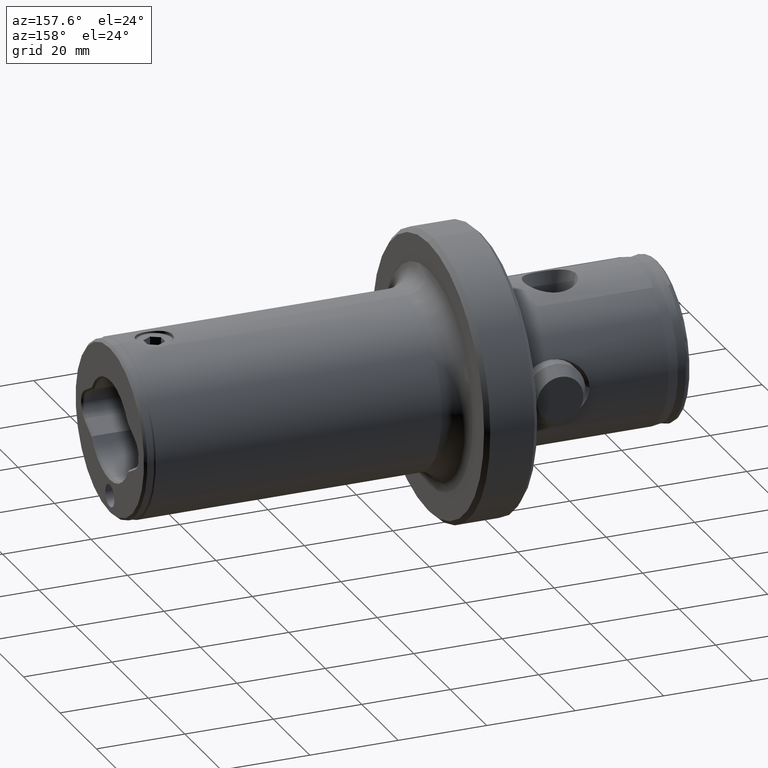
[diagram: clean part render]
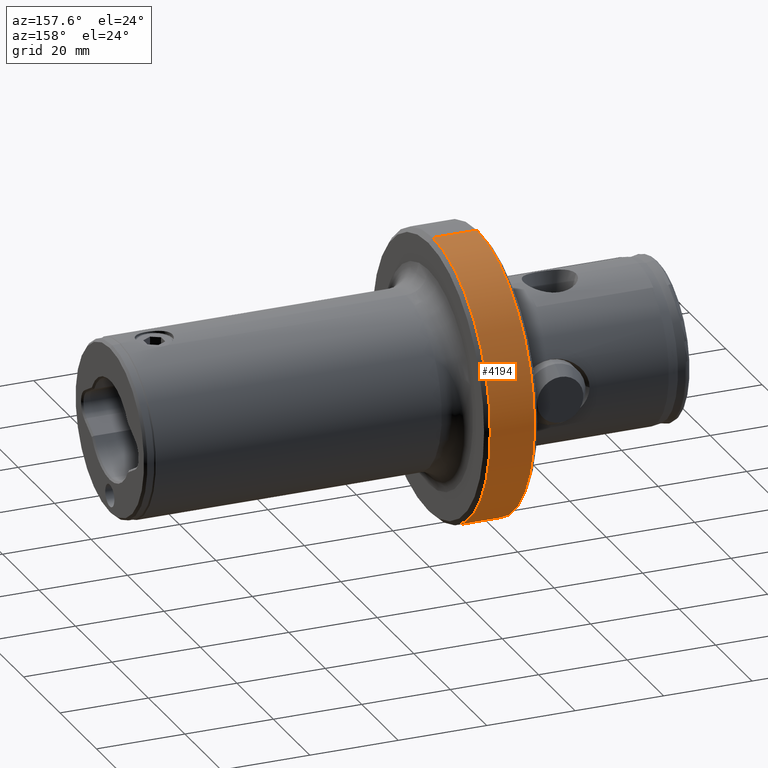
[diagram: same view with one face highlighted and labeled with its STEP entity id]
A machine part, auxiliary view. The second image highlights one B-rep face of the part: STEP entity #4194.
In plain terms, the highlighted cylindrical surface (partial cylindrical patch) has radius 31.635 mm, axis along (-1, -0, -0).
Its self-contained STEP definition (entity closure, byte-faithful):
#90 = CARTESIAN_POINT ( 'NONE',  ( 51.00000000000000700, 0.0000000000000000000, 31.63500000000000500 ) ) ;
#160 = DIRECTION ( 'NONE',  ( -1.000000000000000000, -0.0000000000000000000, -0.0000000000000000000 ) ) ;
#414 = VECTOR ( 'NONE', #2721, 1000.000000000000000 ) ;
#455 = CIRCLE ( 'NONE', #3493, 31.63500000000000500 ) ;
#622 = DIRECTION ( 'NONE',  ( -1.000000000000000000, -0.0000000000000000000, -0.0000000000000000000 ) ) ;
#773 = EDGE_CURVE ( 'NONE', #2010, #4891, #2336, .T. ) ;
#796 = CARTESIAN_POINT ( 'NONE',  ( 41.00000000000000000, 0.0000000000000000000, 31.63500000000000500 ) ) ;
#872 = VERTEX_POINT ( 'NONE', #796 ) ;
#984 = CARTESIAN_POINT ( 'NONE',  ( 41.00000000000000000, 0.0000000000000000000, 0.0000000000000000000 ) ) ;
#1056 = AXIS2_PLACEMENT_3D ( 'NONE', #1162, #4033, #1569 ) ;
#1162 = CARTESIAN_POINT ( 'NONE',  ( 51.00000000000000700, 0.0000000000000000000, 0.0000000000000000000 ) ) ;
#1270 = CYLINDRICAL_SURFACE ( 'NONE', #2875, 31.63500000000000500 ) ;
#1397 = DIRECTION ( 'NONE',  ( 0.0000000000000000000, 0.0000000000000000000, 1.000000000000000000 ) ) ;
#1569 = DIRECTION ( 'NONE',  ( 0.0000000000000000000, 0.0000000000000000000, 1.000000000000000000 ) ) ;
#1697 = VERTEX_POINT ( 'NONE', #90 ) ;
#1699 = CARTESIAN_POINT ( 'NONE',  ( 51.00000000000000700, 3.874170149102652900E-015, -31.63500000000000500 ) ) ;
#1721 = CIRCLE ( 'NONE', #1056, 31.63500000000000500 ) ;
#2010 = VERTEX_POINT ( 'NONE', #1699 ) ;
#2336 = LINE ( 'NONE', #4746, #414 ) ;
#2357 = ORIENTED_EDGE ( 'NONE', *, *, #4827, .F. ) ;
#2405 = ORIENTED_EDGE ( 'NONE', *, *, #3907, .T. ) ;
#2588 = ORIENTED_EDGE ( 'NONE', *, *, #2607, .F. ) ;
#2607 = EDGE_CURVE ( 'NONE', #1697, #872, #4167, .T. ) ;
#2721 = DIRECTION ( 'NONE',  ( -1.000000000000000000, -0.0000000000000000000, -0.0000000000000000000 ) ) ;
#2875 = AXIS2_PLACEMENT_3D ( 'NONE', #4637, #160, #4653 ) ;
#3066 = CARTESIAN_POINT ( 'NONE',  ( 41.00000000000000000, 3.874170149102652900E-015, -31.63500000000000500 ) ) ;
#3069 = CARTESIAN_POINT ( 'NONE',  ( 0.0000000000000000000, 0.0000000000000000000, 31.63500000000000500 ) ) ;
#3080 = VECTOR ( 'NONE', #622, 1000.000000000000000 ) ;
#3481 = ORIENTED_EDGE ( 'NONE', *, *, #773, .T. ) ;
#3493 = AXIS2_PLACEMENT_3D ( 'NONE', #984, #3852, #1397 ) ;
#3588 = FACE_OUTER_BOUND ( 'NONE', #4972, .T. ) ;
#3852 = DIRECTION ( 'NONE',  ( -1.000000000000000000, -0.0000000000000000000, -0.0000000000000000000 ) ) ;
#3907 = EDGE_CURVE ( 'NONE', #1697, #2010, #1721, .T. ) ;
#4033 = DIRECTION ( 'NONE',  ( -1.000000000000000000, -0.0000000000000000000, -0.0000000000000000000 ) ) ;
#4167 = LINE ( 'NONE', #3069, #3080 ) ;
#4194 = ADVANCED_FACE ( 'NONE', ( #3588 ), #1270, .T. ) ;
#4637 = CARTESIAN_POINT ( 'NONE',  ( 0.0000000000000000000, 0.0000000000000000000, 0.0000000000000000000 ) ) ;
#4653 = DIRECTION ( 'NONE',  ( 0.0000000000000000000, 0.0000000000000000000, 1.000000000000000000 ) ) ;
#4746 = CARTESIAN_POINT ( 'NONE',  ( 0.0000000000000000000, 3.874170149102652900E-015, -31.63500000000000500 ) ) ;
#4827 = EDGE_CURVE ( 'NONE', #872, #4891, #455, .T. ) ;
#4891 = VERTEX_POINT ( 'NONE', #3066 ) ;
#4972 = EDGE_LOOP ( 'NONE', ( #2405, #3481, #2357, #2588 ) ) ;